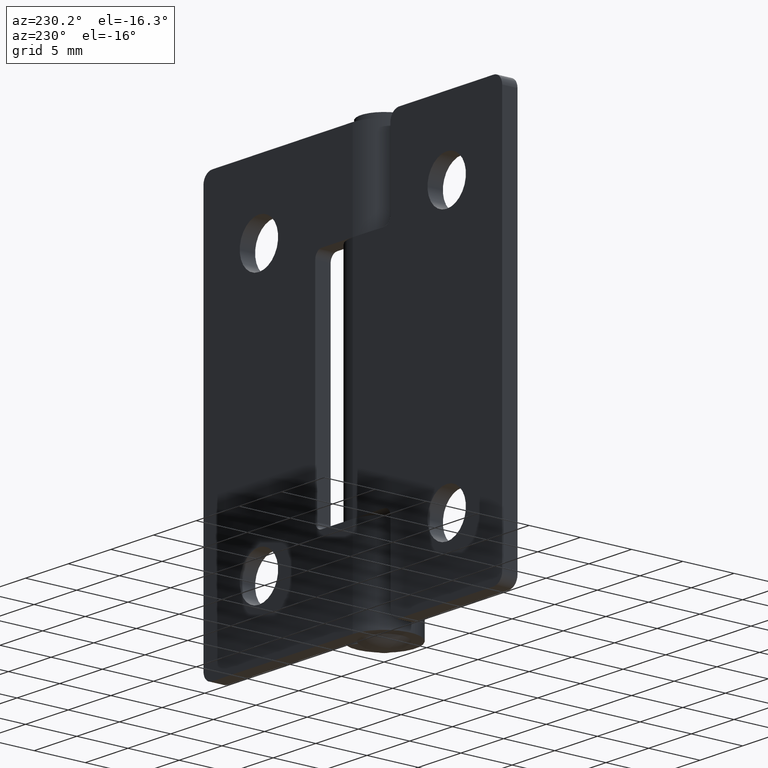
[diagram: clean part render]
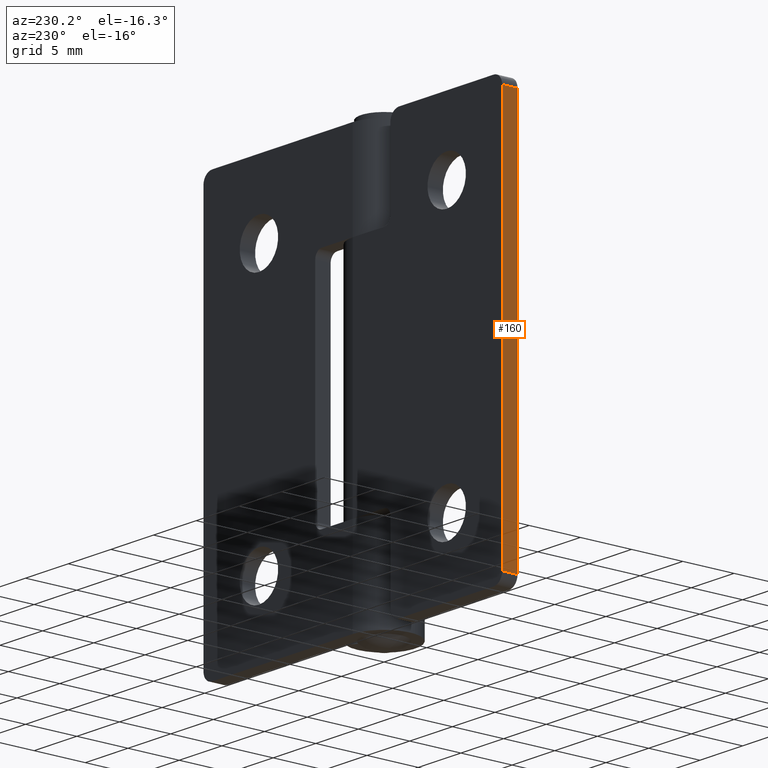
[diagram: same view with one face highlighted and labeled with its STEP entity id]
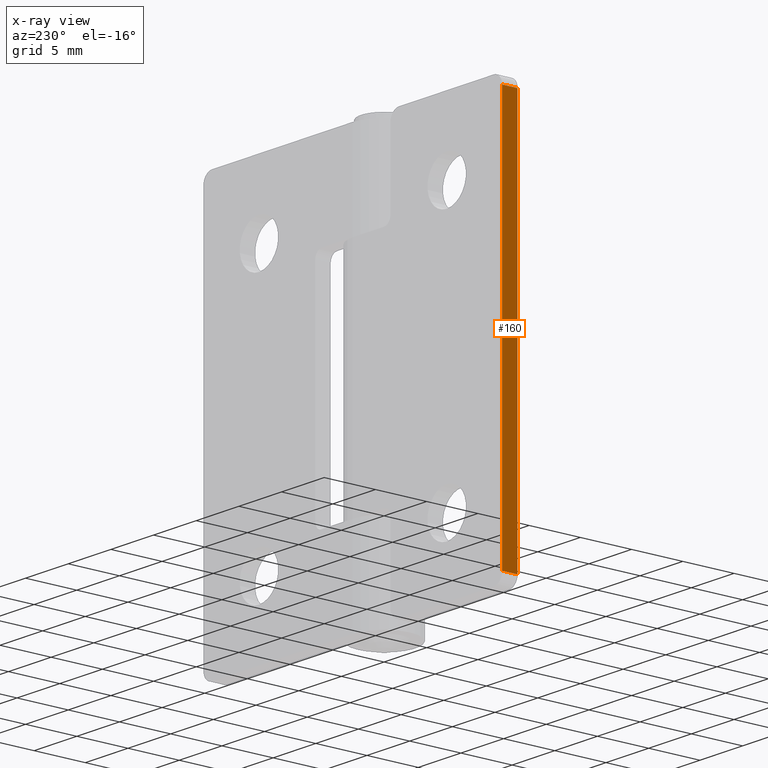
[diagram: x-ray of the same camera — body ghosted, the highlighted face saturated]
A machine part, auxiliary view. The second image highlights one B-rep face of the part: STEP entity #160.
The next image is the same camera in x-ray: the body ghosted, the highlighted face saturated — about 0% of this face is hidden behind the body in this view.
In plain terms, the highlighted planar face has unit normal (1, 0, 0).
Its self-contained STEP definition (entity closure, byte-faithful):
#160=ADVANCED_FACE('',(#321),#320,.F.);
#320=PLANE('',#848);
#321=FACE_OUTER_BOUND('',#849,.T.);
#845=CARTESIAN_POINT('',(-4.02422028826E+01,1.40000000000E+00,4.36000003698E+01));
#846=DIRECTION('',(1.00000000000E+00,0.00000000000E+00,0.00000000000E+00));
#847=DIRECTION('',(0.00000000000E+00,0.00000000000E+00,-1.00000000000E+00));
#848=AXIS2_PLACEMENT_3D('',#845,#846,#847);
#849=EDGE_LOOP('',(#1135,#1136,#1137,#1138));
#1135=ORIENTED_EDGE('',*,*,#1411,.F.);
#1136=ORIENTED_EDGE('',*,*,#1412,.T.);
#1137=ORIENTED_EDGE('',*,*,#1396,.T.);
#1138=ORIENTED_EDGE('',*,*,#1413,.F.);
#1396=EDGE_CURVE('',#1664,#1657,#1665,.T.);
#1411=EDGE_CURVE('',#1768,#1769,#1770,.T.);
#1412=EDGE_CURVE('',#1768,#1664,#1776,.T.);
#1413=EDGE_CURVE('',#1769,#1657,#1782,.T.);
#1657=VERTEX_POINT('',#2584);
#1664=VERTEX_POINT('',#2589);
#1665=LINE('',#2590,#2591);
#1768=VERTEX_POINT('',#2656);
#1769=VERTEX_POINT('',#2657);
#1770=LINE('',#2658,#2659);
#1776=LINE('',#2661,#2662);
#1782=LINE('',#2664,#2665);
#2584=CARTESIAN_POINT('',(-4.02422028826E+01,1.55000000000E+00,3.98000003698E+01));
#2589=CARTESIAN_POINT('',(-4.02422028826E+01,1.55000000000E+00,1.80000036981E+00));
#2590=CARTESIAN_POINT('',(-4.02422028826E+01,1.55000000000E+00,1.80000036981E+00));
#2591=VECTOR('',#2592,3.80000000000E+01);
#2592=DIRECTION('',(0.00000000000E+00,0.00000000000E+00,1.00000000000E+00));
#2656=CARTESIAN_POINT('',(-4.02422028826E+01,3.05000000000E+00,1.80000036981E+00));
#2657=CARTESIAN_POINT('',(-4.02422028826E+01,3.05000000000E+00,3.98000003698E+01));
#2658=CARTESIAN_POINT('',(-4.02422028826E+01,3.05000000000E+00,1.80000036981E+00));
#2659=VECTOR('',#2660,3.80000000000E+01);
#2660=DIRECTION('',(0.00000000000E+00,0.00000000000E+00,1.00000000000E+00));
#2661=CARTESIAN_POINT('',(-4.02422028826E+01,3.05000000000E+00,1.80000036981E+00));
#2662=VECTOR('',#2663,1.50000000000E+00);
#2663=DIRECTION('',(0.00000000000E+00,-1.00000000000E+00,0.00000000000E+00));
#2664=CARTESIAN_POINT('',(-4.02422028826E+01,3.05000000000E+00,3.98000003698E+01));
#2665=VECTOR('',#2666,1.50000000000E+00);
#2666=DIRECTION('',(0.00000000000E+00,-1.00000000000E+00,0.00000000000E+00));